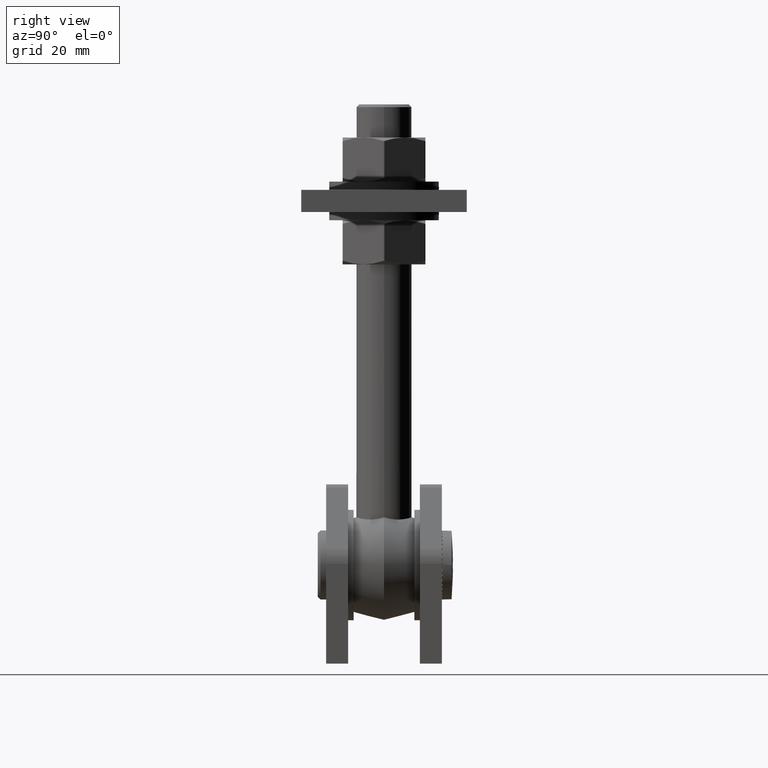
[diagram: clean part render]
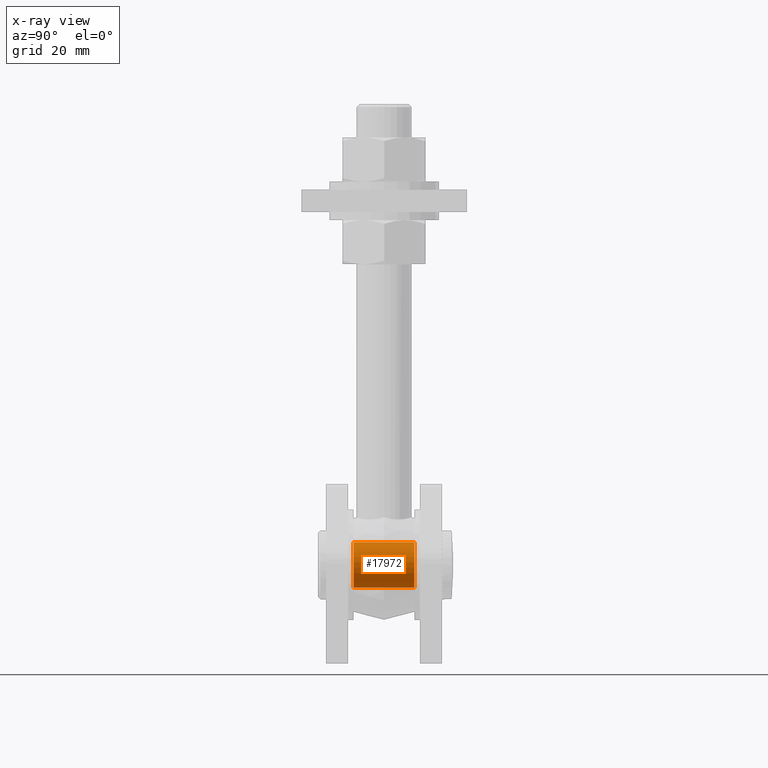
[diagram: x-ray — body ghosted, one internal face saturated and labeled with its STEP entity id]
A machine part, right view, then the same camera in x-ray: the body is ghosted and one INTERNAL B-rep face — a face not visible from any outside direction — is saturated and labeled: STEP entity #17972.
In plain terms, the highlighted cylindrical surface (bore or boss wall) has radius 8.25 mm, axis along (-0, 1, 0).
Its self-contained STEP definition (entity closure, byte-faithful):
#1084 = AXIS2_PLACEMENT_3D ( 'NONE', #19405, #17737, #19314 ) ;
#6437 = ORIENTED_EDGE ( 'NONE', *, *, #20634, .F. ) ;
#7256 = EDGE_LOOP ( 'NONE', ( #6437 ) ) ;
#7931 = CIRCLE ( 'NONE', #23425, 8.250000000000000000 ) ;
#8093 = CIRCLE ( 'NONE', #1084, 8.250000000000000000 ) ;
#8318 = FACE_OUTER_BOUND ( 'NONE', #7256, .T. ) ;
#8371 = CARTESIAN_POINT ( 'NONE',  ( 0.000000000000000000, 11.00000000000000355, 8.249999999999998224 ) ) ;
#9188 = VERTEX_POINT ( 'NONE', #10202 ) ;
#10202 = CARTESIAN_POINT ( 'NONE',  ( 0.000000000000000000, -10.99999999999999645, 8.249999999999998224 ) ) ;
#10671 = DIRECTION ( 'NONE',  ( 0.000000000000000000, 0.000000000000000000, 1.000000000000000000 ) ) ;
#10753 = DIRECTION ( 'NONE',  ( -4.931294844412448686E-48, 1.000000000000000000, 2.013031482287183409E-63 ) ) ;
#10954 = CARTESIAN_POINT ( 'NONE',  ( 0.000000000000000000, 11.00000000000000000, -9.184850993605147944E-16 ) ) ;
#11592 = FACE_OUTER_BOUND ( 'NONE', #23157, .T. ) ;
#13043 = DIRECTION ( 'NONE',  ( 0.000000000000000000, 0.000000000000000000, 1.000000000000000000 ) ) ;
#13650 = AXIS2_PLACEMENT_3D ( 'NONE', #10954, #20681, #13043 ) ;
#16142 = ORIENTED_EDGE ( 'NONE', *, *, #22554, .T. ) ;
#17737 = DIRECTION ( 'NONE',  ( -4.931294844412448686E-48, 1.000000000000000000, 2.013031482287183409E-63 ) ) ;
#17972 = ADVANCED_FACE ( 'NONE', ( #8318, #11592 ), #22365, .F. ) ;
#18441 = CARTESIAN_POINT ( 'NONE',  ( 0.000000000000000000, -10.99999999999999645, -9.184850993605147944E-16 ) ) ;
#19314 = DIRECTION ( 'NONE',  ( 0.000000000000000000, 0.000000000000000000, 1.000000000000000000 ) ) ;
#19405 = CARTESIAN_POINT ( 'NONE',  ( 0.000000000000000000, 11.00000000000000355, -9.184850993605147944E-16 ) ) ;
#20634 = EDGE_CURVE ( 'NONE', #9188, #9188, #7931, .T. ) ;
#20681 = DIRECTION ( 'NONE',  ( -4.931294844412448686E-48, 1.000000000000000000, 2.013031482287183409E-63 ) ) ;
#22365 = CYLINDRICAL_SURFACE ( 'NONE', #13650, 8.250000000000000000 ) ;
#22554 = EDGE_CURVE ( 'NONE', #23819, #23819, #8093, .T. ) ;
#23157 = EDGE_LOOP ( 'NONE', ( #16142 ) ) ;
#23425 = AXIS2_PLACEMENT_3D ( 'NONE', #18441, #10753, #10671 ) ;
#23819 = VERTEX_POINT ( 'NONE', #8371 ) ;